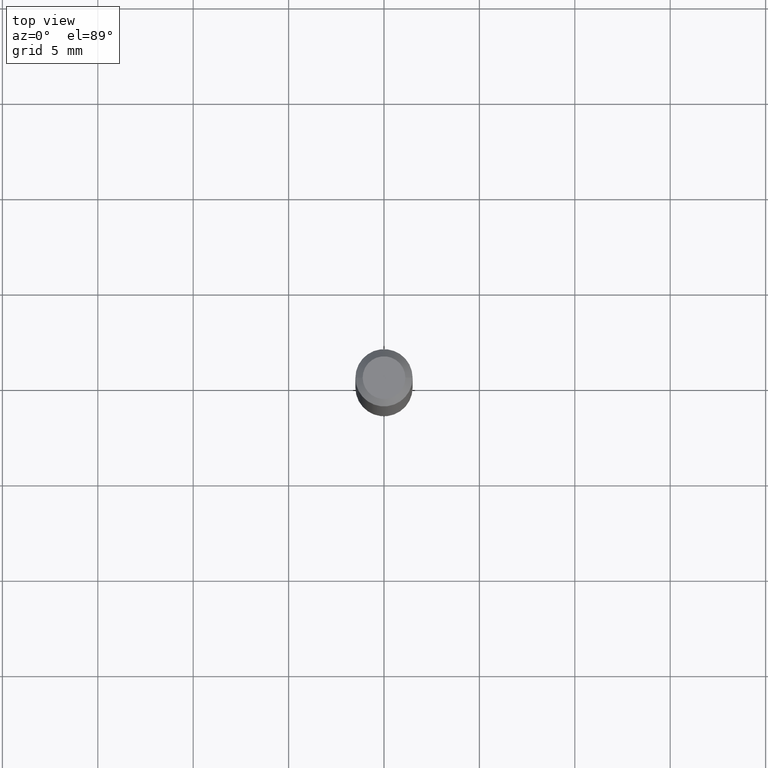
[diagram: clean part render]
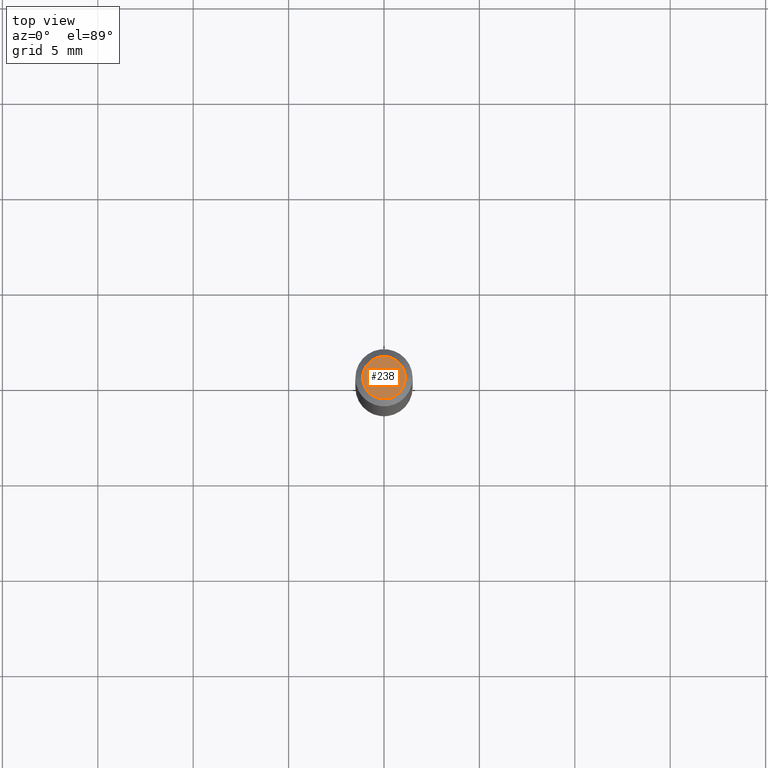
[diagram: same view with one face highlighted and labeled with its STEP entity id]
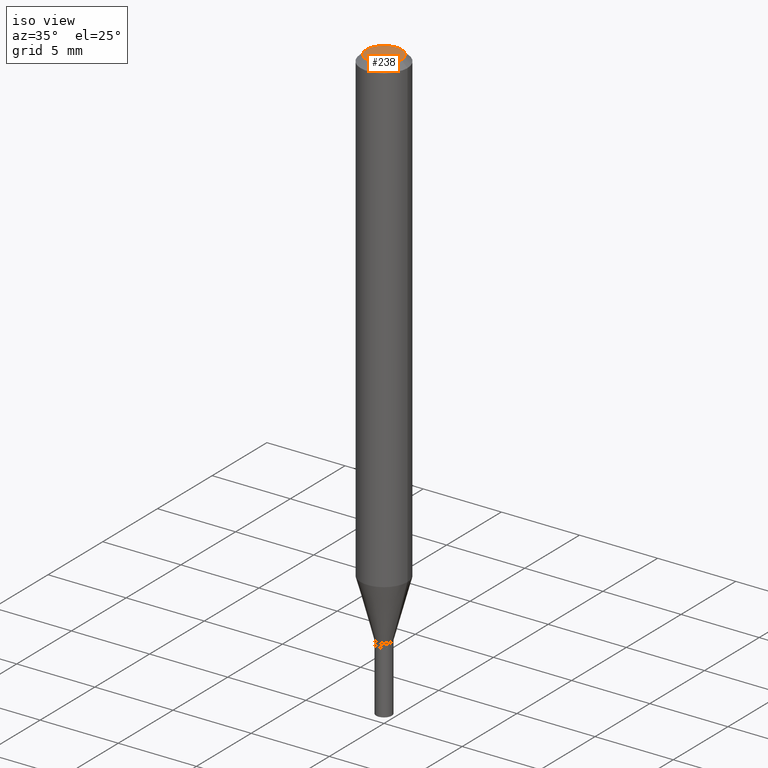
[diagram: same view with one face highlighted and labeled with its STEP entity id]
A machine part, top view. The second image highlights one B-rep face of the part: STEP entity #238.
A second angle (iso view) of the same face is appended — the face is thin or edge-on in the first view.
In plain terms, the highlighted planar face has unit normal (0, -0, -1).
Its self-contained STEP definition (entity closure, byte-faithful):
#2 = ORIENTED_EDGE ( 'NONE', *, *, #168, .T. ) ;
#77 = DIRECTION ( 'NONE',  ( -1.000000000000000000, 6.982962677686265922E-15, -4.876176775795935793E-29 ) ) ;
#82 = CARTESIAN_POINT ( 'NONE',  ( -8.641182519006289553E-45, 1.233731848647591164E-30, 3.533548453838711334E-16 ) ) ;
#87 = ORIENTED_EDGE ( 'NONE', *, *, #244, .T. ) ;
#129 = CIRCLE ( 'NONE', #445, 0.04404999999999999888 ) ;
#168 = EDGE_CURVE ( 'NONE', #241, #460, #129, .T. ) ;
#189 = CARTESIAN_POINT ( 'NONE',  ( 3.075995059520799729E-16, 0.04404999999999999888, 2.287766971589501637E-17 ) ) ;
#217 = DIRECTION ( 'NONE',  ( -2.445468806185136597E-29, 3.491481338843145583E-15, 1.000000000000000000 ) ) ;
#227 = DIRECTION ( 'NONE',  ( 1.000000000000000000, -6.982962677686265922E-15, 4.819687581474398999E-29 ) ) ;
#237 = CARTESIAN_POINT ( 'NONE',  ( -8.641182519006289553E-45, 1.233731848647591164E-30, 3.533548453838711334E-16 ) ) ;
#238 = ADVANCED_FACE ( 'NONE', ( #271 ), #419, .F. ) ;
#241 = VERTEX_POINT ( 'NONE', #387 ) ;
#244 = EDGE_CURVE ( 'NONE', #460, #241, #456, .T. ) ;
#271 = FACE_OUTER_BOUND ( 'NONE', #328, .T. ) ;
#278 = AXIS2_PLACEMENT_3D ( 'NONE', #189, #412, #77 ) ;
#328 = EDGE_LOOP ( 'NONE', ( #87, #2 ) ) ;
#370 = DIRECTION ( 'NONE',  ( 1.000000000000000000, -6.982962677686265922E-15, 4.819687581474398999E-29 ) ) ;
#387 = CARTESIAN_POINT ( 'NONE',  ( 0.04404999999999999888, -3.798447818264455642E-16, 3.533548453838735986E-16 ) ) ;
#403 = CARTESIAN_POINT ( 'NONE',  ( -0.04404999999999999888, 3.337856159934041534E-16, 3.533548453838689148E-16 ) ) ;
#412 = DIRECTION ( 'NONE',  ( 2.438088387897960049E-29, -3.491481338843145188E-15, -1.000000000000000000 ) ) ;
#418 = AXIS2_PLACEMENT_3D ( 'NONE', #82, #217, #227 ) ;
#419 = PLANE ( 'NONE',  #278 ) ;
#445 = AXIS2_PLACEMENT_3D ( 'NONE', #237, #459, #370 ) ;
#456 = CIRCLE ( 'NONE', #418, 0.04404999999999999888 ) ;
#459 = DIRECTION ( 'NONE',  ( -2.445468806185136597E-29, 3.491481338843145583E-15, 1.000000000000000000 ) ) ;
#460 = VERTEX_POINT ( 'NONE', #403 ) ;